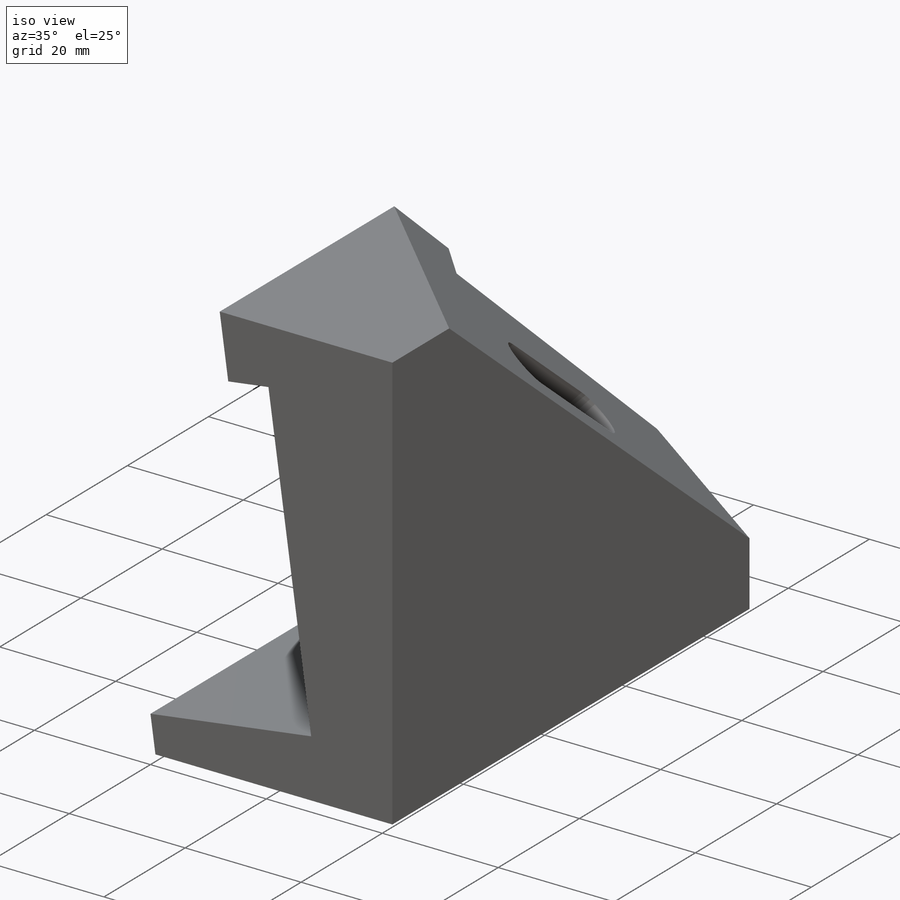
[diagram: iso view]
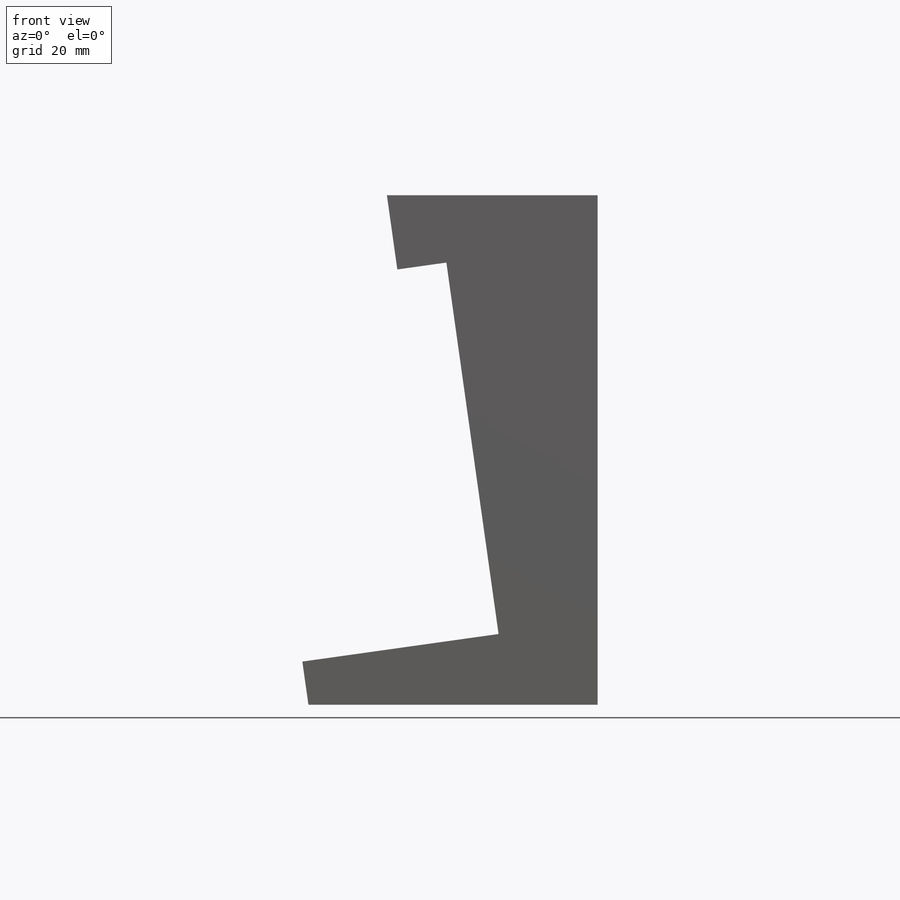
[diagram: front view]
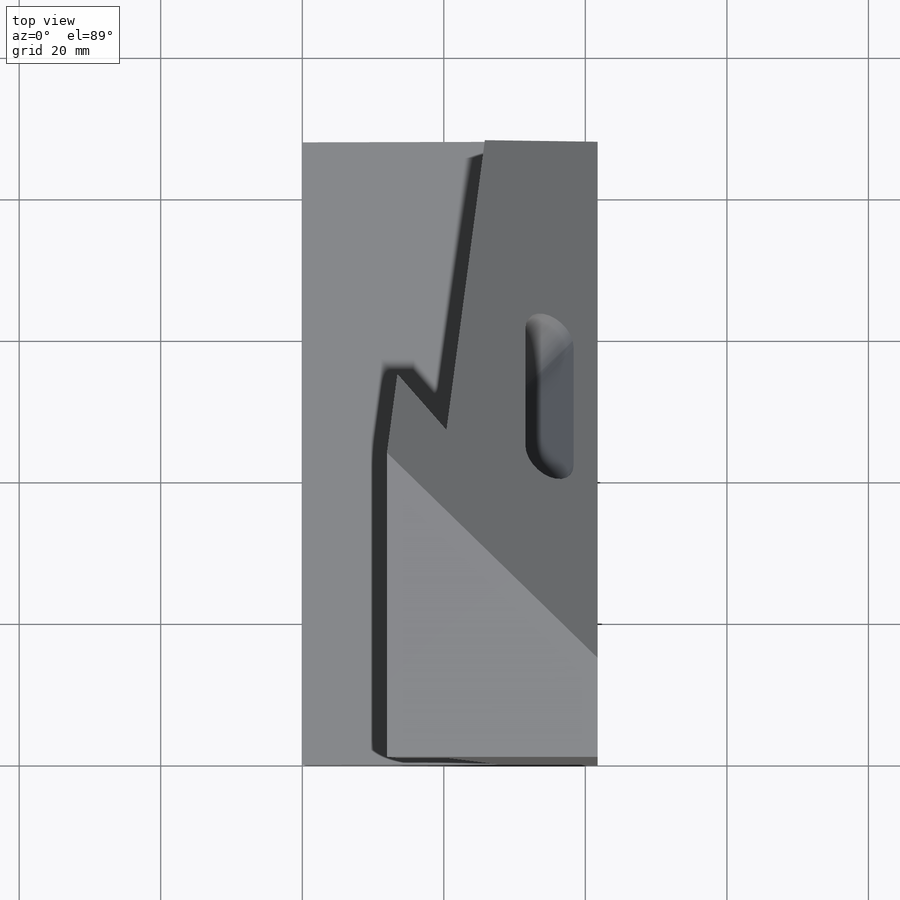
[diagram: top view]
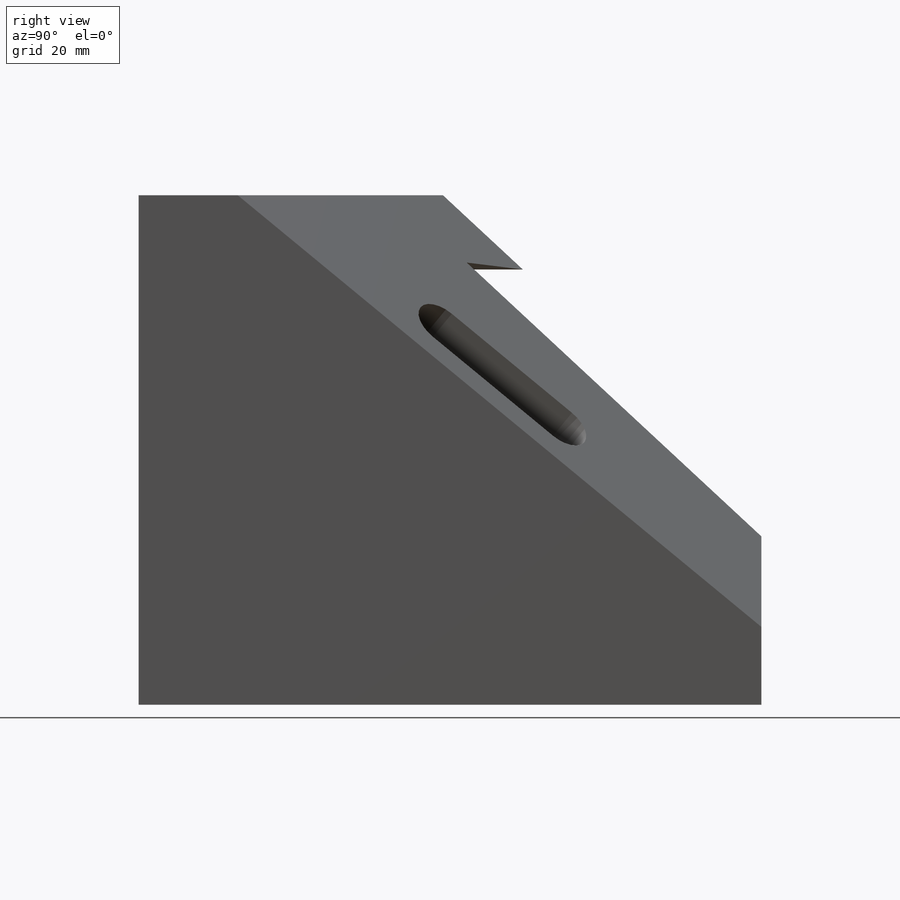
[diagram: right view]
SOLIDWORKS PART (.sldprt)
format: sldprt  version: not decoded by parser v0  size: 180,736 bytes
history: native  units: mm
features: sketch x5, cut_extrude x2, material x1, extrude x1, plane x1 (+13 scaffold rows collapsed)
feature tree (23):
  scaffold x13  (default folders/planes/origin — collapsed)
  material  "6061 Alloy"
  sketch  "Sketch2"  dims[c1.D1=72.0mm c1.D2=28.0mm c1.D3=~45.559811mm c2.D3=8.0deg c2.D4=~15.612555mm c3.D4=~28.217356deg c4.D4=10.0mm c4.D5=14.0mm c4.D6=10.0mm c5.D6=8.0deg c5.D7=~20.663714mm c6.D7=8.0deg c7.D7=~33.121358mm c8.D7=8.0deg c9.D7=7.0mm c9.D8=7.0mm c10.D8=8.0deg c11.D8=7.0mm c11.D2=28.0mm c11.D3=53.0mm c11.D4=~52.484208mm c12.D4=8.0deg c12.D5=~6.593157mm c13.D5=8.0deg c14.D5=10.0mm c14.D8=14.0mm]
  extrude  "Boss-Extrude1"  Depth=88mm
  sketch  "Sketch3"  dims[D1=14.0mm D2=45.0mm]
  sketch  "Sketch4"  dims[D1=11.0mm]
  plane  "Plane1"
  sketch  "Sketch5"
  cut_extrude  "Cut-Extrude1"  Depth=88mm
  sketch  "Sketch6"  dims[D1=8.0mm D2=8.0mm D3=30.0mm D4=30.0mm D5=4.0mm]
  cut_extrude  "Cut-Extrude2"  [1 undecoded]
decode coverage: 6 of 8 modeling features carry decoded parameters
note: ~ marks probable driven/reference dimensions
note: 1 parameter value undecoded
note: suppression state not decoded; provenance and decode notes live in map.json
